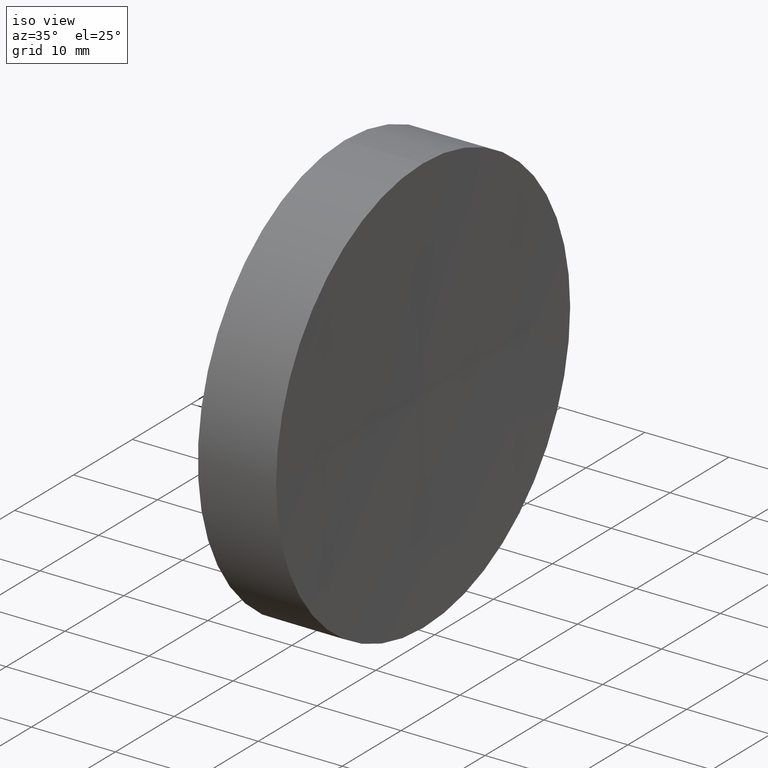
[diagram: clean part render]
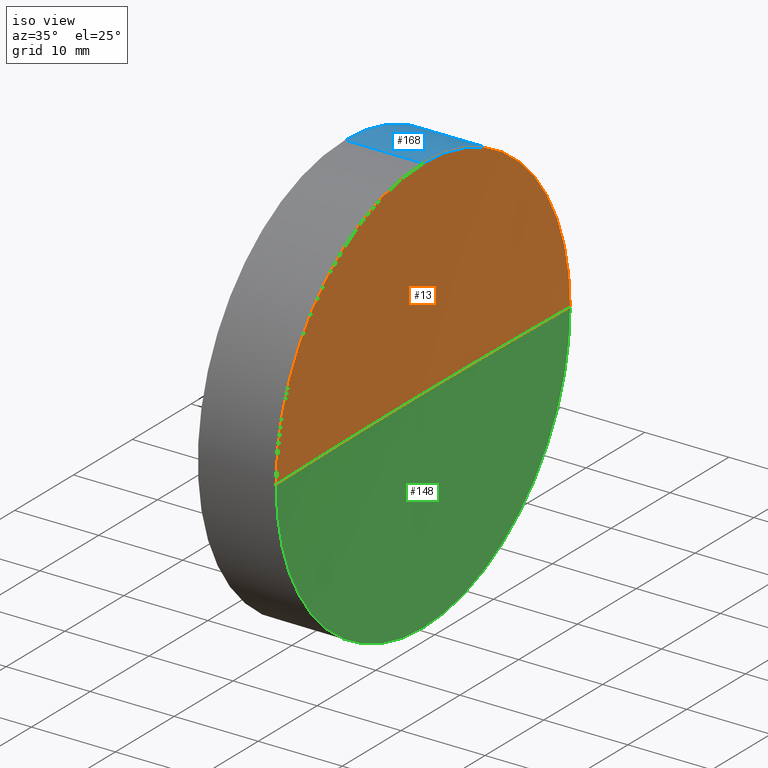
[diagram: same view with three faces highlighted in distinct colors, each labeled with its STEP entity id]
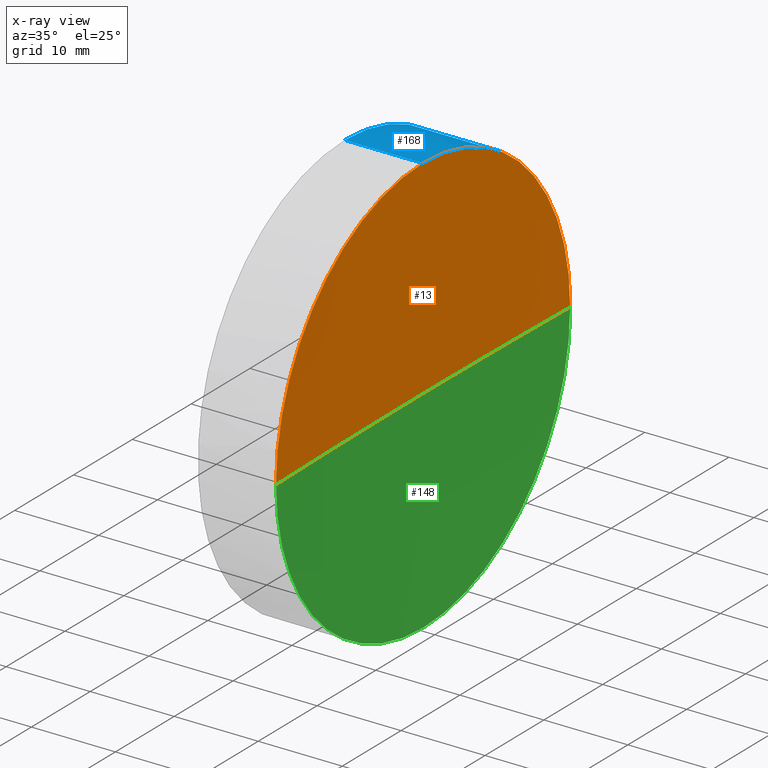
[diagram: x-ray of the same camera — body ghosted, the three highlighted faces saturated]
A machine part, iso view with three faces highlighted in distinct colors.
The next image is the same camera in x-ray (body ghosted, the three faces saturated) — at least one of them is partly hidden behind the body in this view.
Their STEP definitions:

[orange] entity #13 — the highlighted spherical surface has radius 1000 mm.
#3 = SPHERICAL_SURFACE ( 'NONE', #92, 1000.000000000000000 ) ;
#9 = DIRECTION ( 'NONE',  ( 0.0000000000000000000, 1.000000000000000000, 1.224646799147353200E-016 ) ) ;
#11 = ORIENTED_EDGE ( 'NONE', *, *, #152, .F. ) ;
#13 = ADVANCED_FACE ( 'NONE', ( #114 ), #3, .F. ) ;
#14 = AXIS2_PLACEMENT_3D ( 'NONE', #182, #67, #76 ) ;
#22 = DIRECTION ( 'NONE',  ( 0.0000000000000000000, 0.0000000000000000000, 1.000000000000000000 ) ) ;
#28 = AXIS2_PLACEMENT_3D ( 'NONE', #127, #132, #9 ) ;
#32 = AXIS2_PLACEMENT_3D ( 'NONE', #112, #22, #113 ) ;
#35 = ORIENTED_EDGE ( 'NONE', *, *, #139, .F. ) ;
#38 = EDGE_CURVE ( 'NONE', #115, #118, #81, .T. ) ;
#41 = DIRECTION ( 'NONE',  ( 0.0000000000000000000, 0.0000000000000000000, 1.000000000000000000 ) ) ;
#42 = DIRECTION ( 'NONE',  ( 0.0000000000000000000, 0.0000000000000000000, -1.000000000000000000 ) ) ;
#44 = CARTESIAN_POINT ( 'NONE',  ( 1239.185310015103100, 138.7560422467428800, 0.0000000000000000000 ) ) ;
#67 = DIRECTION ( 'NONE',  ( -1.000000000000000000, -0.0000000000000000000, -0.0000000000000000000 ) ) ;
#68 = ORIENTED_EDGE ( 'NONE', *, *, #136, .T. ) ;
#76 = DIRECTION ( 'NONE',  ( 0.0000000000000000000, 0.0000000000000000000, 1.000000000000000000 ) ) ;
#80 = CIRCLE ( 'NONE', #32, 1000.000000000000200 ) ;
#81 = CIRCLE ( 'NONE', #104, 24.99999999999996800 ) ;
#87 = VERTEX_POINT ( 'NONE', #123 ) ;
#91 = EDGE_LOOP ( 'NONE', ( #35, #68, #11, #103 ) ) ;
#92 = AXIS2_PLACEMENT_3D ( 'NONE', #44, #42, #181 ) ;
#95 = DIRECTION ( 'NONE',  ( -1.000000000000000000, -0.0000000000000000000, -0.0000000000000000000 ) ) ;
#96 = CIRCLE ( 'NONE', #28, 1000.000000000000000 ) ;
#99 = CARTESIAN_POINT ( 'NONE',  ( 239.4978588584929500, 113.7560422467429100, -3.061616997868377100E-015 ) ) ;
#102 = CIRCLE ( 'NONE', #14, 24.99999999999996800 ) ;
#103 = ORIENTED_EDGE ( 'NONE', *, *, #38, .F. ) ;
#104 = AXIS2_PLACEMENT_3D ( 'NONE', #140, #95, #41 ) ;
#112 = CARTESIAN_POINT ( 'NONE',  ( 1239.185310015103100, 138.7560422467428800, 0.0000000000000000000 ) ) ;
#113 = DIRECTION ( 'NONE',  ( 1.000000000000000000, 0.0000000000000000000, 0.0000000000000000000 ) ) ;
#114 = FACE_OUTER_BOUND ( 'NONE', #91, .T. ) ;
#115 = VERTEX_POINT ( 'NONE', #155 ) ;
#118 = VERTEX_POINT ( 'NONE', #146 ) ;
#123 = CARTESIAN_POINT ( 'NONE',  ( 239.1853100151031100, 138.7560422467429400, 0.0000000000000000000 ) ) ;
#127 = CARTESIAN_POINT ( 'NONE',  ( 1239.185310015103100, 138.7560422467428800, 0.0000000000000000000 ) ) ;
#132 = DIRECTION ( 'NONE',  ( 0.0000000000000000000, 1.224646799147353200E-016, -1.000000000000000000 ) ) ;
#136 = EDGE_CURVE ( 'NONE', #178, #87, #96, .T. ) ;
#139 = EDGE_CURVE ( 'NONE', #178, #115, #102, .T. ) ;
#140 = CARTESIAN_POINT ( 'NONE',  ( 239.4978588584929200, 138.7560422467448700, 0.0000000000000000000 ) ) ;
#146 = CARTESIAN_POINT ( 'NONE',  ( 239.4978588584929500, 163.7560422467448400, 0.0000000000000000000 ) ) ;
#152 = EDGE_CURVE ( 'NONE', #118, #87, #80, .T. ) ;
#155 = CARTESIAN_POINT ( 'NONE',  ( 239.4978588584929200, 138.7560422467448700, 24.99999999999996800 ) ) ;
#178 = VERTEX_POINT ( 'NONE', #99 ) ;
#181 = DIRECTION ( 'NONE',  ( 0.0000000000000000000, 1.000000000000000000, 0.0000000000000000000 ) ) ;
#182 = CARTESIAN_POINT ( 'NONE',  ( 239.4978588584929200, 138.7560422467448700, 0.0000000000000000000 ) ) ;

[blue] entity #168 — the highlighted cylindrical surface (partial cylindrical patch) has radius 25 mm, axis along (-1, -0, -0).
#8 = DIRECTION ( 'NONE',  ( -1.000000000000000000, -0.0000000000000000000, -0.0000000000000000000 ) ) ;
#17 = ORIENTED_EDGE ( 'NONE', *, *, #38, .T. ) ;
#23 = CYLINDRICAL_SURFACE ( 'NONE', #49, 24.99999999999998200 ) ;
#26 = VECTOR ( 'NONE', #179, 1000.000000000000000 ) ;
#30 = DIRECTION ( 'NONE',  ( 0.0000000000000000000, 0.0000000000000000000, 1.000000000000000000 ) ) ;
#33 = CARTESIAN_POINT ( 'NONE',  ( 217.9702860043302100, 138.7560422467448700, 24.99999999999998200 ) ) ;
#38 = EDGE_CURVE ( 'NONE', #115, #118, #81, .T. ) ;
#40 = ORIENTED_EDGE ( 'NONE', *, *, #79, .T. ) ;
#41 = DIRECTION ( 'NONE',  ( 0.0000000000000000000, 0.0000000000000000000, 1.000000000000000000 ) ) ;
#49 = AXIS2_PLACEMENT_3D ( 'NONE', #109, #150, #147 ) ;
#59 = VERTEX_POINT ( 'NONE', #61 ) ;
#60 = CARTESIAN_POINT ( 'NONE',  ( 217.9702860043302100, 138.7560422467448700, -24.99999999999998200 ) ) ;
#61 = CARTESIAN_POINT ( 'NONE',  ( 239.4978588584929200, 138.7560422467448700, -24.99999999999996800 ) ) ;
#64 = CARTESIAN_POINT ( 'NONE',  ( 230.1853110698390300, 138.7560422467448700, -24.99999999999999600 ) ) ;
#73 = DIRECTION ( 'NONE',  ( -1.000000000000000000, -0.0000000000000000000, -0.0000000000000000000 ) ) ;
#74 = DIRECTION ( 'NONE',  ( -1.000000000000000000, -0.0000000000000000000, -0.0000000000000000000 ) ) ;
#79 = EDGE_CURVE ( 'NONE', #59, #110, #162, .T. ) ;
#81 = CIRCLE ( 'NONE', #104, 24.99999999999996800 ) ;
#83 = EDGE_CURVE ( 'NONE', #153, #110, #125, .T. ) ;
#85 = CARTESIAN_POINT ( 'NONE',  ( 230.1853110698390300, 138.7560422467448700, 0.0000000000000000000 ) ) ;
#88 = DIRECTION ( 'NONE',  ( 0.0000000000000000000, 0.0000000000000000000, 1.000000000000000000 ) ) ;
#93 = EDGE_CURVE ( 'NONE', #118, #59, #137, .T. ) ;
#95 = DIRECTION ( 'NONE',  ( -1.000000000000000000, -0.0000000000000000000, -0.0000000000000000000 ) ) ;
#98 = AXIS2_PLACEMENT_3D ( 'NONE', #161, #74, #88 ) ;
#100 = ORIENTED_EDGE ( 'NONE', *, *, #83, .F. ) ;
#104 = AXIS2_PLACEMENT_3D ( 'NONE', #140, #95, #41 ) ;
#107 = ORIENTED_EDGE ( 'NONE', *, *, #124, .F. ) ;
#109 = CARTESIAN_POINT ( 'NONE',  ( 217.9702860043302100, 138.7560422467448700, 0.0000000000000000000 ) ) ;
#110 = VERTEX_POINT ( 'NONE', #64 ) ;
#115 = VERTEX_POINT ( 'NONE', #155 ) ;
#117 = VECTOR ( 'NONE', #8, 1000.000000000000000 ) ;
#118 = VERTEX_POINT ( 'NONE', #146 ) ;
#124 = EDGE_CURVE ( 'NONE', #115, #153, #169, .T. ) ;
#125 = CIRCLE ( 'NONE', #174, 24.99999999999999300 ) ;
#130 = CARTESIAN_POINT ( 'NONE',  ( 230.1853110698390300, 138.7560422467448700, 24.99999999999999300 ) ) ;
#137 = CIRCLE ( 'NONE', #98, 24.99999999999996800 ) ;
#140 = CARTESIAN_POINT ( 'NONE',  ( 239.4978588584929200, 138.7560422467448700, 0.0000000000000000000 ) ) ;
#145 = EDGE_LOOP ( 'NONE', ( #171, #40, #100, #107, #17 ) ) ;
#146 = CARTESIAN_POINT ( 'NONE',  ( 239.4978588584929500, 163.7560422467448400, 0.0000000000000000000 ) ) ;
#147 = DIRECTION ( 'NONE',  ( 0.0000000000000000000, 0.0000000000000000000, 1.000000000000000000 ) ) ;
#150 = DIRECTION ( 'NONE',  ( -1.000000000000000000, -0.0000000000000000000, -0.0000000000000000000 ) ) ;
#153 = VERTEX_POINT ( 'NONE', #130 ) ;
#155 = CARTESIAN_POINT ( 'NONE',  ( 239.4978588584929200, 138.7560422467448700, 24.99999999999996800 ) ) ;
#161 = CARTESIAN_POINT ( 'NONE',  ( 239.4978588584929200, 138.7560422467448700, 0.0000000000000000000 ) ) ;
#162 = LINE ( 'NONE', #60, #26 ) ;
#168 = ADVANCED_FACE ( 'NONE', ( #177 ), #23, .T. ) ;
#169 = LINE ( 'NONE', #33, #117 ) ;
#171 = ORIENTED_EDGE ( 'NONE', *, *, #93, .T. ) ;
#174 = AXIS2_PLACEMENT_3D ( 'NONE', #85, #73, #30 ) ;
#177 = FACE_OUTER_BOUND ( 'NONE', #145, .T. ) ;
#179 = DIRECTION ( 'NONE',  ( -1.000000000000000000, -0.0000000000000000000, -0.0000000000000000000 ) ) ;

[green] entity #148 — the highlighted spherical surface has radius 1000 mm.
#6 = DIRECTION ( 'NONE',  ( 0.0000000000000000000, 0.0000000000000000000, 1.000000000000000000 ) ) ;
#9 = DIRECTION ( 'NONE',  ( 0.0000000000000000000, 1.000000000000000000, 1.224646799147353200E-016 ) ) ;
#19 = ORIENTED_EDGE ( 'NONE', *, *, #136, .F. ) ;
#22 = DIRECTION ( 'NONE',  ( 0.0000000000000000000, 0.0000000000000000000, 1.000000000000000000 ) ) ;
#25 = DIRECTION ( 'NONE',  ( 0.0000000000000000000, 1.000000000000000000, 0.0000000000000000000 ) ) ;
#27 = ORIENTED_EDGE ( 'NONE', *, *, #164, .F. ) ;
#28 = AXIS2_PLACEMENT_3D ( 'NONE', #127, #132, #9 ) ;
#32 = AXIS2_PLACEMENT_3D ( 'NONE', #112, #22, #113 ) ;
#48 = ORIENTED_EDGE ( 'NONE', *, *, #152, .T. ) ;
#50 = DIRECTION ( 'NONE',  ( -1.000000000000000000, -0.0000000000000000000, -0.0000000000000000000 ) ) ;
#59 = VERTEX_POINT ( 'NONE', #61 ) ;
#61 = CARTESIAN_POINT ( 'NONE',  ( 239.4978588584929200, 138.7560422467448700, -24.99999999999996800 ) ) ;
#62 = SPHERICAL_SURFACE ( 'NONE', #160, 1000.000000000000000 ) ;
#63 = AXIS2_PLACEMENT_3D ( 'NONE', #185, #50, #6 ) ;
#74 = DIRECTION ( 'NONE',  ( -1.000000000000000000, -0.0000000000000000000, -0.0000000000000000000 ) ) ;
#78 = EDGE_LOOP ( 'NONE', ( #19, #27, #138, #48 ) ) ;
#80 = CIRCLE ( 'NONE', #32, 1000.000000000000200 ) ;
#82 = CIRCLE ( 'NONE', #63, 24.99999999999996800 ) ;
#87 = VERTEX_POINT ( 'NONE', #123 ) ;
#88 = DIRECTION ( 'NONE',  ( 0.0000000000000000000, 0.0000000000000000000, 1.000000000000000000 ) ) ;
#89 = CARTESIAN_POINT ( 'NONE',  ( 1239.185310015103100, 138.7560422467428800, 0.0000000000000000000 ) ) ;
#93 = EDGE_CURVE ( 'NONE', #118, #59, #137, .T. ) ;
#96 = CIRCLE ( 'NONE', #28, 1000.000000000000000 ) ;
#98 = AXIS2_PLACEMENT_3D ( 'NONE', #161, #74, #88 ) ;
#99 = CARTESIAN_POINT ( 'NONE',  ( 239.4978588584929500, 113.7560422467429100, -3.061616997868377100E-015 ) ) ;
#112 = CARTESIAN_POINT ( 'NONE',  ( 1239.185310015103100, 138.7560422467428800, 0.0000000000000000000 ) ) ;
#113 = DIRECTION ( 'NONE',  ( 1.000000000000000000, 0.0000000000000000000, 0.0000000000000000000 ) ) ;
#118 = VERTEX_POINT ( 'NONE', #146 ) ;
#123 = CARTESIAN_POINT ( 'NONE',  ( 239.1853100151031100, 138.7560422467429400, 0.0000000000000000000 ) ) ;
#126 = DIRECTION ( 'NONE',  ( 0.0000000000000000000, 0.0000000000000000000, -1.000000000000000000 ) ) ;
#127 = CARTESIAN_POINT ( 'NONE',  ( 1239.185310015103100, 138.7560422467428800, 0.0000000000000000000 ) ) ;
#132 = DIRECTION ( 'NONE',  ( 0.0000000000000000000, 1.224646799147353200E-016, -1.000000000000000000 ) ) ;
#136 = EDGE_CURVE ( 'NONE', #178, #87, #96, .T. ) ;
#137 = CIRCLE ( 'NONE', #98, 24.99999999999996800 ) ;
#138 = ORIENTED_EDGE ( 'NONE', *, *, #93, .F. ) ;
#146 = CARTESIAN_POINT ( 'NONE',  ( 239.4978588584929500, 163.7560422467448400, 0.0000000000000000000 ) ) ;
#148 = ADVANCED_FACE ( 'NONE', ( #151 ), #62, .F. ) ;
#151 = FACE_OUTER_BOUND ( 'NONE', #78, .T. ) ;
#152 = EDGE_CURVE ( 'NONE', #118, #87, #80, .T. ) ;
#160 = AXIS2_PLACEMENT_3D ( 'NONE', #89, #126, #25 ) ;
#161 = CARTESIAN_POINT ( 'NONE',  ( 239.4978588584929200, 138.7560422467448700, 0.0000000000000000000 ) ) ;
#164 = EDGE_CURVE ( 'NONE', #59, #178, #82, .T. ) ;
#178 = VERTEX_POINT ( 'NONE', #99 ) ;
#185 = CARTESIAN_POINT ( 'NONE',  ( 239.4978588584929200, 138.7560422467448700, 0.0000000000000000000 ) ) ;